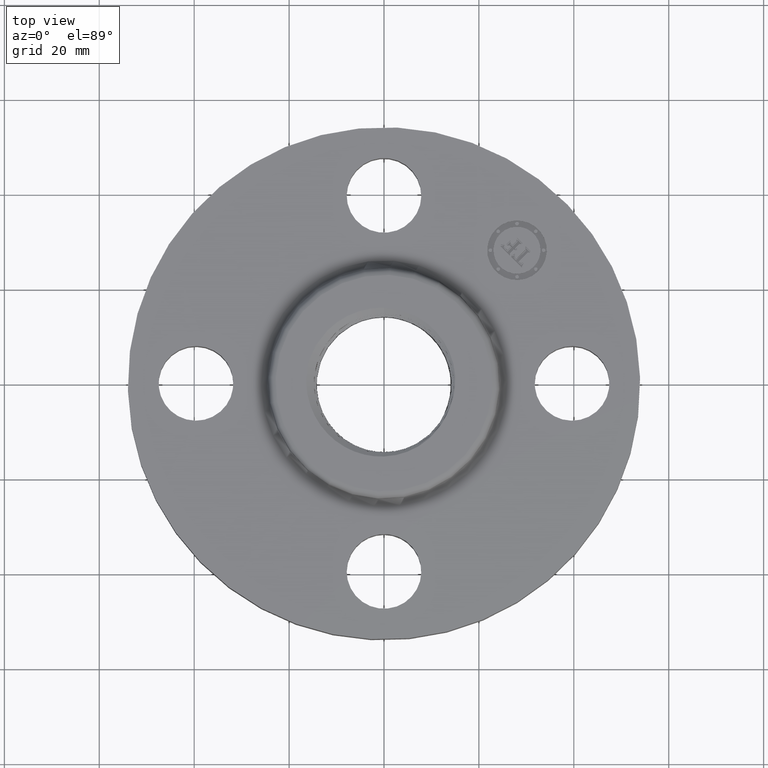
[diagram: clean part render]
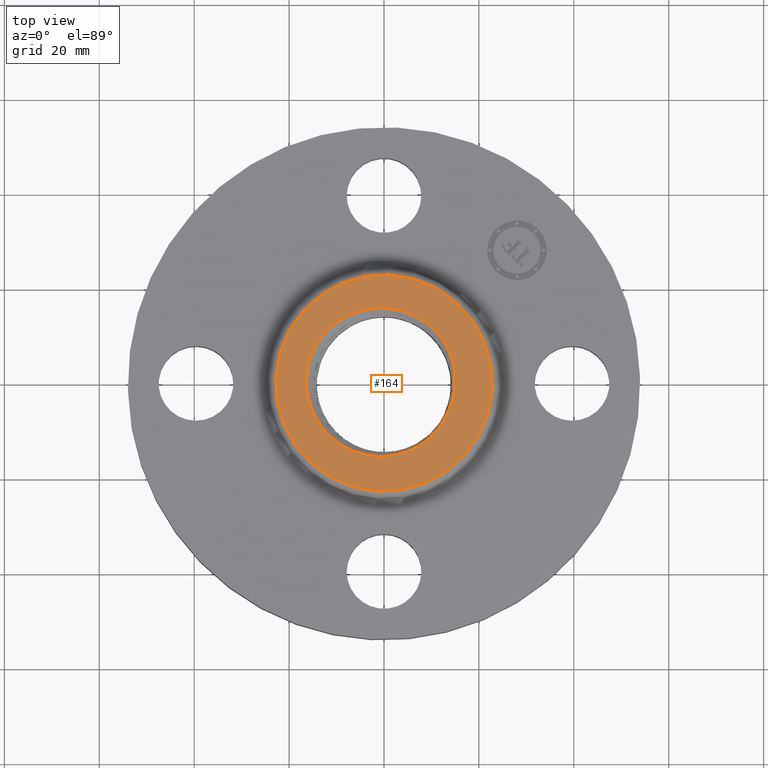
[diagram: same view with one face highlighted and labeled with its STEP entity id]
A machine part, top view. The second image highlights one B-rep face of the part: STEP entity #164.
In plain terms, the highlighted planar face has unit normal (0, 0, -1).
Its self-contained STEP definition (entity closure, byte-faithful):
#38=AXIS2_PLACEMENT_3D('Plane Axis2P3D',#35,#36,#37) ;
#42=AXIS2_PLACEMENT_3D('Circle Axis2P3D',#40,#41,$) ;
#51=AXIS2_PLACEMENT_3D('Circle Axis2P3D',#49,#50,$) ;
#60=AXIS2_PLACEMENT_3D('Circle Axis2P3D',#58,#59,$) ;
#35=CARTESIAN_POINT('Axis2P3D Location',(0.,0.898494784448,0.620000000002)) ;
#40=CARTESIAN_POINT('Axis2P3D Location',(0.,0.,0.620000000002)) ;
#44=CARTESIAN_POINT('Vertex',(0.430761345967,0.788503354781,0.620000000002)) ;
#46=CARTESIAN_POINT('Vertex',(-0.430761345967,-0.788503354781,0.620000000002)) ;
#49=CARTESIAN_POINT('Axis2P3D Location',(0.,0.,0.620000000002)) ;
#58=CARTESIAN_POINT('Axis2P3D Location',(2.79741234551E-016,-1.39870617276E-016,0.620000000002)) ;
#62=CARTESIAN_POINT('Vertex',(0.546496999509,-0.204757150772,0.619999550448)) ;
#64=CARTESIAN_POINT('Vertex',(0.517980035506,-0.268851584391,0.620000382473)) ;
#68=CARTESIAN_POINT('Control Point',(0.286416566846,-0.524280990202,0.620000000002)) ;
#69=CARTESIAN_POINT('Control Point',(0.338067920109,-0.493385983864,0.620000000002)) ;
#70=CARTESIAN_POINT('Control Point',(0.385691962637,-0.45606156254,0.620000000002)) ;
#71=CARTESIAN_POINT('Control Point',(0.428195447083,-0.412994694271,0.620000000002)) ;
#72=CARTESIAN_POINT('Control Point',(0.470884338003,-0.357015319843,0.620000000002)) ;
#73=CARTESIAN_POINT('Control Point',(0.504494466861,-0.296037985149,0.620000000002)) ;
#74=CARTESIAN_POINT('Control Point',(0.509190422769,-0.287063925945,0.620000000002)) ;
#75=CARTESIAN_POINT('Control Point',(0.513685092471,-0.278001950926,0.620000000002)) ;
#76=CARTESIAN_POINT('Control Point',(0.517979456421,-0.268851266502,0.620000000002)) ;
#77=CARTESIAN_POINT('Vertex',(0.286416566846,-0.524280990202,0.620000000002)) ;
#81=CARTESIAN_POINT('Control Point',(3.78292466293E-007,-0.609086848221,0.620000000002)) ;
#82=CARTESIAN_POINT('Control Point',(0.0606239829346,-0.606763422019,0.620000000002)) ;
#83=CARTESIAN_POINT('Control Point',(0.120808869956,-0.596892269689,0.620000000002)) ;
#84=CARTESIAN_POINT('Control Point',(0.179321892824,-0.579538143361,0.620000000002)) ;
#85=CARTESIAN_POINT('Control Point',(0.234874383822,-0.555110697011,0.620000000002)) ;
#86=CARTESIAN_POINT('Control Point',(0.286416566846,-0.524280990202,0.620000000002)) ;
#87=CARTESIAN_POINT('Vertex',(3.78292466293E-007,-0.609086848221,0.620000000002)) ;
#91=CARTESIAN_POINT('Control Point',(-0.629250759311,0.170458365064,0.620000000002)) ;
#92=CARTESIAN_POINT('Control Point',(-0.643500589222,0.109256081759,0.620000000002)) ;
#93=CARTESIAN_POINT('Control Point',(-0.650343130275,0.0464582697708,0.620000000002)) ;
#94=CARTESIAN_POINT('Control Point',(-0.649517963363,-0.0167532465867,0.620000000002)) ;
#95=CARTESIAN_POINT('Control Point',(-0.633997794713,-0.131060806303,0.620000000002)) ;
#96=CARTESIAN_POINT('Control Point',(-0.593925743533,-0.2384856314,0.620000000002)) ;
#97=CARTESIAN_POINT('Control Point',(-0.570836110613,-0.285190907884,0.620000000002)) ;
#98=CARTESIAN_POINT('Control Point',(-0.510048119826,-0.381869372478,0.620000000002)) ;
#99=CARTESIAN_POINT('Control Point',(-0.429483928483,-0.462472903271,0.620000000002)) ;
#100=CARTESIAN_POINT('Control Point',(-0.380424955199,-0.500705900548,0.620000000002)) ;
#101=CARTESIAN_POINT('Control Point',(-0.27878746912,-0.561379843912,0.620000000002)) ;
#102=CARTESIAN_POINT('Control Point',(-0.166418684736,-0.596473181313,0.620000000002)) ;
#103=CARTESIAN_POINT('Control Point',(-0.111225857057,-0.607025673846,0.620000000002)) ;
#104=CARTESIAN_POINT('Control Point',(-0.0554292981041,-0.611211214727,0.620000000002)) ;
#105=CARTESIAN_POINT('Control Point',(3.78292465944E-007,-0.609086848221,0.620000000002)) ;
#106=CARTESIAN_POINT('Vertex',(-0.629250759311,0.170458365064,0.620000000002)) ;
#110=CARTESIAN_POINT('Control Point',(-0.629250759311,0.170458365064,0.620000000002)) ;
#111=CARTESIAN_POINT('Control Point',(-0.610861455596,0.230558879586,0.620000000002)) ;
#112=CARTESIAN_POINT('Control Point',(-0.585260563085,0.288328609128,0.620000000002)) ;
#113=CARTESIAN_POINT('Control Point',(-0.552816982092,0.34261668223,0.620000000002)) ;
#114=CARTESIAN_POINT('Control Point',(-0.488634584125,0.425238547762,0.620000000002)) ;
#115=CARTESIAN_POINT('Control Point',(-0.409784849152,0.492895716272,0.620000000002)) ;
#116=CARTESIAN_POINT('Control Point',(-0.37631913933,0.517210544706,0.620000000002)) ;
#117=CARTESIAN_POINT('Control Point',(-0.341077386221,0.538691582236,0.620000000002)) ;
#118=CARTESIAN_POINT('Control Point',(-0.304386268355,0.557179385981,0.620000000002)) ;
#119=CARTESIAN_POINT('Vertex',(-0.304386268355,0.557179385981,0.620000000002)) ;
#123=CARTESIAN_POINT('Control Point',(-0.304386268355,0.557179385981,0.620000000002)) ;
#124=CARTESIAN_POINT('Control Point',(-0.253485433716,0.582827136685,0.620000000002)) ;
#125=CARTESIAN_POINT('Control Point',(-0.199795104162,0.602714360141,0.620000000002)) ;
#126=CARTESIAN_POINT('Control Point',(-0.144160493033,0.616423125618,0.620000000002)) ;
#127=CARTESIAN_POINT('Control Point',(-0.0813735860185,0.624524692791,0.620000000002)) ;
#128=CARTESIAN_POINT('Control Point',(-0.0185923459656,0.624739497492,0.620000000002)) ;
#129=CARTESIAN_POINT('Control Point',(-0.0123899177907,0.624683726028,0.620000000002)) ;
#130=CARTESIAN_POINT('Control Point',(-0.006191696393,0.624551025819,0.620000000002)) ;
#131=CARTESIAN_POINT('Control Point',(2.66464368927E-006,0.624341459176,0.620000000002)) ;
#132=CARTESIAN_POINT('Vertex',(2.66464368929E-006,0.624341459176,0.620000000002)) ;
#136=CARTESIAN_POINT('Control Point',(2.66464368939E-006,0.624341459176,0.620000000002)) ;
#137=CARTESIAN_POINT('Control Point',(0.0614872110591,0.622261323751,0.620000000002)) ;
#138=CARTESIAN_POINT('Control Point',(0.122591472248,0.612608056985,0.620000000002)) ;
#139=CARTESIAN_POINT('Control Point',(0.182056871911,0.595442661094,0.620000000002)) ;
#140=CARTESIAN_POINT('Control Point',(0.295259218445,0.546851328978,0.620000000002)) ;
#141=CARTESIAN_POINT('Control Point',(0.392702625336,0.472355310995,0.620000000002)) ;
#142=CARTESIAN_POINT('Control Point',(0.436426411038,0.429270041214,0.620000000002)) ;
#143=CARTESIAN_POINT('Control Point',(0.499417265242,0.349299027325,0.620000000002)) ;
#144=CARTESIAN_POINT('Control Point',(0.54419208968,0.258739248027,0.620000000002)) ;
#145=CARTESIAN_POINT('Control Point',(0.558996009633,0.221151731707,0.620000000002)) ;
#146=CARTESIAN_POINT('Control Point',(0.587906303764,0.12465777996,0.620000000002)) ;
#147=CARTESIAN_POINT('Control Point',(0.596118744865,0.02419813198,0.620000000002)) ;
#148=CARTESIAN_POINT('Control Point',(0.593351877001,-0.036237044556,0.620000000002)) ;
#149=CARTESIAN_POINT('Control Point',(0.581045201033,-0.10660370567,0.620000000002)) ;
#150=CARTESIAN_POINT('Control Point',(0.55859999026,-0.173625514791,0.620000000002)) ;
#151=CARTESIAN_POINT('Control Point',(0.554808441933,-0.184110411972,0.620000000002)) ;
#152=CARTESIAN_POINT('Control Point',(0.550773869359,-0.194486950241,0.620000000002)) ;
#153=CARTESIAN_POINT('Control Point',(0.546496363213,-0.204756851436,0.620000000002)) ;
#36=DIRECTION('Axis2P3D Direction',(0.,0.,-0.0393700787402)) ;
#37=DIRECTION('Axis2P3D XDirection',(0.0393700787402,0.,0.)) ;
#41=DIRECTION('Axis2P3D Direction',(0.,0.,-0.0393700787402)) ;
#50=DIRECTION('Axis2P3D Direction',(0.,0.,-0.0393700787402)) ;
#59=DIRECTION('Axis2P3D Direction',(0.,0.,-0.0393700787402)) ;
#55=ORIENTED_EDGE('',*,*,#48,.F.) ;
#56=ORIENTED_EDGE('',*,*,#53,.F.) ;
#156=ORIENTED_EDGE('',*,*,#66,.T.) ;
#157=ORIENTED_EDGE('',*,*,#79,.F.) ;
#158=ORIENTED_EDGE('',*,*,#89,.F.) ;
#159=ORIENTED_EDGE('',*,*,#108,.F.) ;
#160=ORIENTED_EDGE('',*,*,#121,.T.) ;
#161=ORIENTED_EDGE('',*,*,#134,.T.) ;
#162=ORIENTED_EDGE('',*,*,#154,.T.) ;
#163=FACE_BOUND('',#155,.T.) ;
#164=ADVANCED_FACE('PartBody',(#57,#163),#39,.F.) ;
#67=B_SPLINE_CURVE_WITH_KNOTS('',5,(#68,#69,#70,#71,#72,#73,#74,#75,#76),.UNSPECIFIED.,.F.,.U.,(6,3,6),(0.,11.0106852404,12.8843120022),.UNSPECIFIED.) ;
#80=B_SPLINE_CURVE_WITH_KNOTS('',5,(#81,#82,#83,#84,#85,#86),.UNSPECIFIED.,.F.,.U.,(6,6),(0.,10.9874130803),.UNSPECIFIED.) ;
#90=B_SPLINE_CURVE_WITH_KNOTS('',5,(#91,#92,#93,#94,#95,#96,#97,#98,#99,#100,#101,#102,#103,#104,#105),.UNSPECIFIED.,.F.,.U.,(6,3,3,3,6),(0.,11.0065155199,20.1754305989,31.1821039202,41.2281702177),.UNSPECIFIED.) ;
#109=B_SPLINE_CURVE_WITH_KNOTS('',5,(#110,#111,#112,#113,#114,#115,#116,#117,#118),.UNSPECIFIED.,.F.,.U.,(6,3,6),(0.,11.0082237239,18.2903990682),.UNSPECIFIED.) ;
#122=B_SPLINE_CURVE_WITH_KNOTS('',5,(#123,#124,#125,#126,#127,#128,#129,#130,#131),.UNSPECIFIED.,.F.,.U.,(6,3,6),(0.,10.1024123762,11.209828457),.UNSPECIFIED.) ;
#135=B_SPLINE_CURVE_WITH_KNOTS('',5,(#136,#137,#138,#139,#140,#141,#142,#143,#144,#145,#146,#147,#148,#149,#150,#151,#152,#153),.UNSPECIFIED.,.F.,.U.,(6,3,3,3,3,6),(0.,10.9920902279,21.9881231964,29.3163738139,40.3085101245,42.3658991094),.UNSPECIFIED.) ;
#43=CIRCLE('generated circle',#42,0.898494784448) ;
#52=CIRCLE('generated circle',#51,0.898494784448) ;
#61=CIRCLE('generated circle',#60,0.583596159739) ;
#48=EDGE_CURVE('',#45,#47,#43,.T.) ;
#53=EDGE_CURVE('',#47,#45,#52,.T.) ;
#66=EDGE_CURVE('',#63,#65,#61,.T.) ;
#79=EDGE_CURVE('',#78,#65,#67,.T.) ;
#89=EDGE_CURVE('',#88,#78,#80,.T.) ;
#108=EDGE_CURVE('',#107,#88,#90,.T.) ;
#121=EDGE_CURVE('',#107,#120,#109,.T.) ;
#134=EDGE_CURVE('',#120,#133,#122,.T.) ;
#154=EDGE_CURVE('',#133,#63,#135,.T.) ;
#54=EDGE_LOOP('',(#55,#56)) ;
#155=EDGE_LOOP('',(#156,#157,#158,#159,#160,#161,#162)) ;
#57=FACE_OUTER_BOUND('',#54,.T.) ;
#39=PLANE('',#38) ;
#45=VERTEX_POINT('',#44) ;
#47=VERTEX_POINT('',#46) ;
#63=VERTEX_POINT('',#62) ;
#65=VERTEX_POINT('',#64) ;
#78=VERTEX_POINT('',#77) ;
#88=VERTEX_POINT('',#87) ;
#107=VERTEX_POINT('',#106) ;
#120=VERTEX_POINT('',#119) ;
#133=VERTEX_POINT('',#132) ;